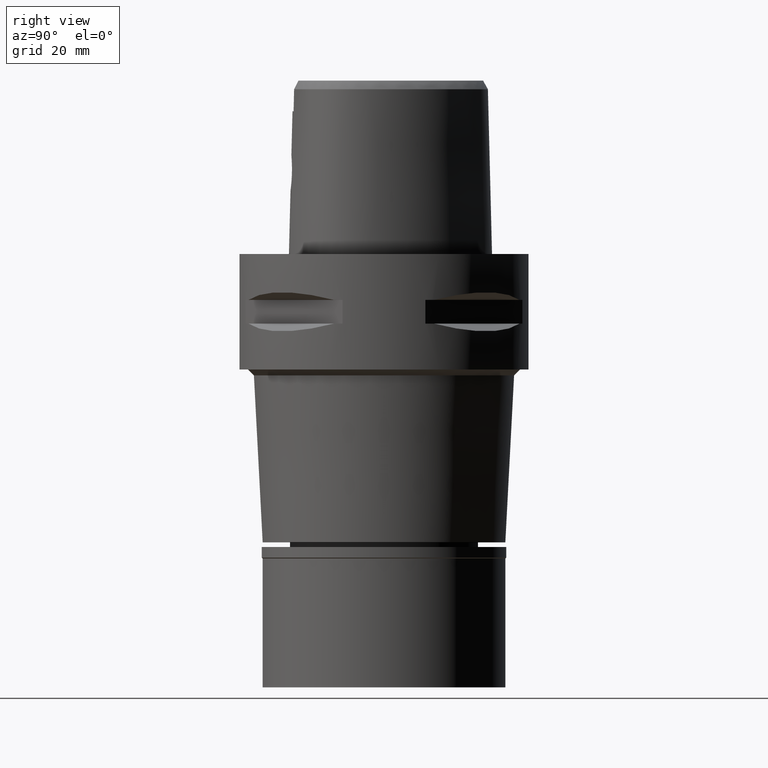
[diagram: clean part render]
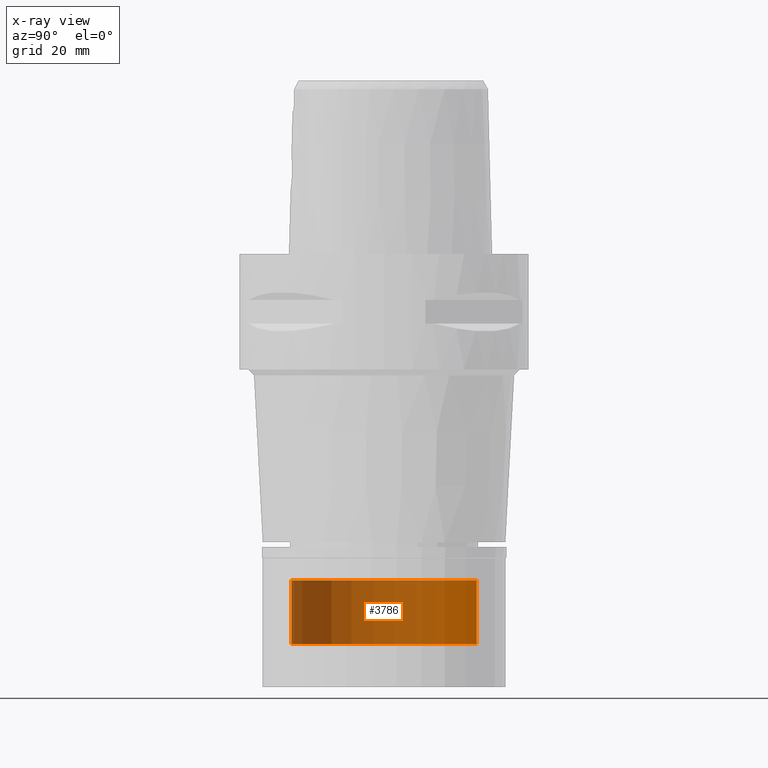
[diagram: x-ray — body ghosted, one internal face saturated and labeled with its STEP entity id]
A machine part, right view, then the same camera in x-ray: the body is ghosted and one INTERNAL B-rep face — a face not visible from any outside direction — is saturated and labeled: STEP entity #3786.
In plain terms, the highlighted cylindrical surface (partial cylindrical patch) has radius 16 mm, axis along (0, 0, -1).
Its self-contained STEP definition (entity closure, byte-faithful):
#17 = CARTESIAN_POINT ( 'NONE',  ( 0.0000000000000000000, -16.00000000000000000, -56.50000000000000000 ) ) ;
#241 = DIRECTION ( 'NONE',  ( 0.0000000000000000000, 0.0000000000000000000, 1.000000000000000000 ) ) ;
#327 = ORIENTED_EDGE ( 'NONE', *, *, #2599, .T. ) ;
#478 = ORIENTED_EDGE ( 'NONE', *, *, #3523, .T. ) ;
#509 = VERTEX_POINT ( 'NONE', #2807 ) ;
#515 = CARTESIAN_POINT ( 'NONE',  ( 0.0000000000000000000, 16.00000000000000000, -56.50000000000000000 ) ) ;
#526 = ORIENTED_EDGE ( 'NONE', *, *, #4433, .T. ) ;
#633 = VERTEX_POINT ( 'NONE', #4418 ) ;
#769 = FACE_OUTER_BOUND ( 'NONE', #1607, .T. ) ;
#842 = DIRECTION ( 'NONE',  ( 0.0000000000000000000, -1.000000000000000000, 0.0000000000000000000 ) ) ;
#1186 = LINE ( 'NONE', #515, #1567 ) ;
#1208 = DIRECTION ( 'NONE',  ( 0.0000000000000000000, 0.0000000000000000000, -1.000000000000000000 ) ) ;
#1215 = VERTEX_POINT ( 'NONE', #17 ) ;
#1276 = VERTEX_POINT ( 'NONE', #1922 ) ;
#1309 = AXIS2_PLACEMENT_3D ( 'NONE', #1582, #1208, #842 ) ;
#1567 = VECTOR ( 'NONE', #4332, 1000.000000000000000 ) ;
#1582 = CARTESIAN_POINT ( 'NONE',  ( 0.0000000000000000000, 1.265978628619000106E-14, -56.50000000000000000 ) ) ;
#1607 = EDGE_LOOP ( 'NONE', ( #327, #2036, #478, #526 ) ) ;
#1922 = CARTESIAN_POINT ( 'NONE',  ( 0.0000000000000000000, 16.00000000000000000, -56.50000000000000000 ) ) ;
#2036 = ORIENTED_EDGE ( 'NONE', *, *, #2384, .F. ) ;
#2384 = EDGE_CURVE ( 'NONE', #1215, #633, #2770, .T. ) ;
#2415 = CARTESIAN_POINT ( 'NONE',  ( 0.0000000000000000000, -16.00000000000000000, -56.50000000000000000 ) ) ;
#2599 = EDGE_CURVE ( 'NONE', #509, #633, #3477, .T. ) ;
#2681 = DIRECTION ( 'NONE',  ( 0.0000000000000000000, -1.000000000000000000, 0.0000000000000000000 ) ) ;
#2770 = LINE ( 'NONE', #2415, #3556 ) ;
#2807 = CARTESIAN_POINT ( 'NONE',  ( 0.0000000000000000000, 16.00000000000000000, -67.50000000000000000 ) ) ;
#2891 = DIRECTION ( 'NONE',  ( 0.0000000000000000000, 1.000000000000000000, 0.0000000000000000000 ) ) ;
#2965 = CARTESIAN_POINT ( 'NONE',  ( 0.0000000000000000000, 1.265978628619000106E-14, -67.50000000000000000 ) ) ;
#3059 = DIRECTION ( 'NONE',  ( 0.0000000000000000000, 0.0000000000000000000, -1.000000000000000000 ) ) ;
#3071 = CIRCLE ( 'NONE', #1309, 16.00000000000000000 ) ;
#3231 = AXIS2_PLACEMENT_3D ( 'NONE', #2965, #241, #2891 ) ;
#3233 = DIRECTION ( 'NONE',  ( 0.0000000000000000000, 0.0000000000000000000, -1.000000000000000000 ) ) ;
#3477 = CIRCLE ( 'NONE', #3231, 16.00000000000000000 ) ;
#3523 = EDGE_CURVE ( 'NONE', #1215, #1276, #3071, .T. ) ;
#3556 = VECTOR ( 'NONE', #3233, 1000.000000000000000 ) ;
#3786 = ADVANCED_FACE ( 'NONE', ( #769 ), #3808, .T. ) ;
#3808 = CYLINDRICAL_SURFACE ( 'NONE', #4198, 16.00000000000000000 ) ;
#3858 = CARTESIAN_POINT ( 'NONE',  ( 0.0000000000000000000, 1.265978628619000106E-14, 3.375000000000000000 ) ) ;
#4198 = AXIS2_PLACEMENT_3D ( 'NONE', #3858, #3059, #2681 ) ;
#4332 = DIRECTION ( 'NONE',  ( 0.0000000000000000000, 0.0000000000000000000, -1.000000000000000000 ) ) ;
#4418 = CARTESIAN_POINT ( 'NONE',  ( 0.0000000000000000000, -16.00000000000000000, -67.50000000000000000 ) ) ;
#4433 = EDGE_CURVE ( 'NONE', #1276, #509, #1186, .T. ) ;